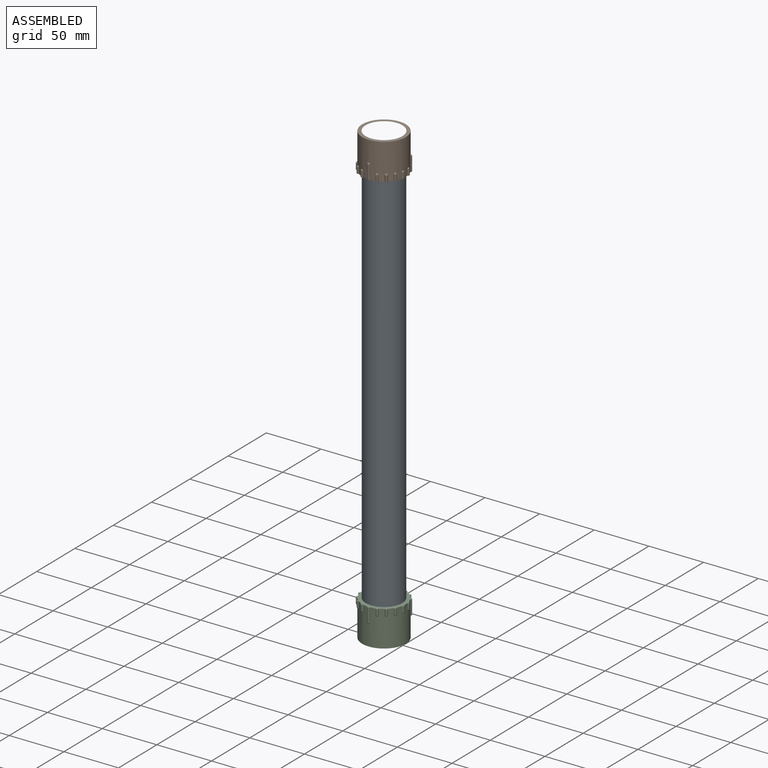
[diagram: assembled view]
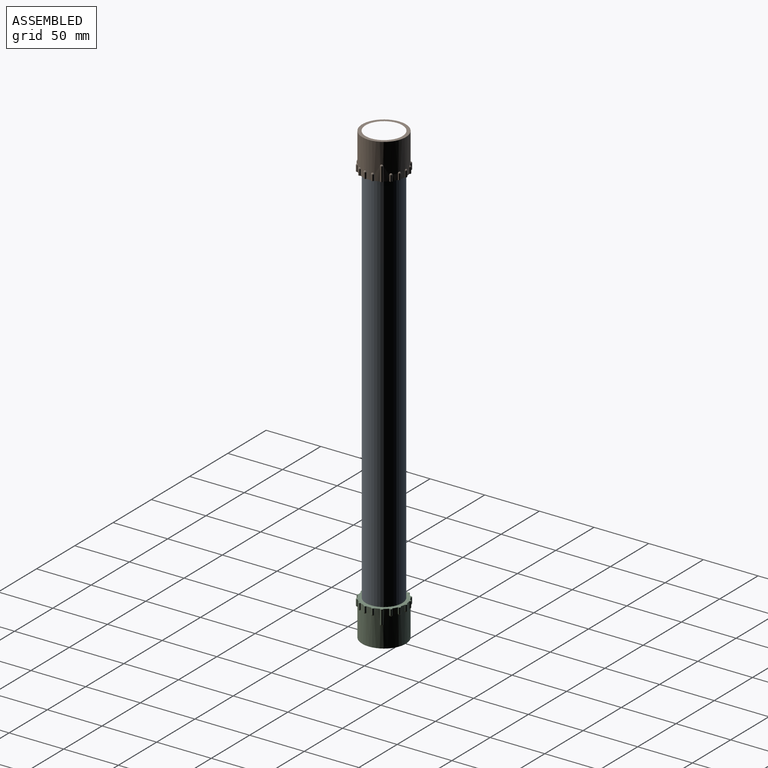
[diagram: assembled view, second angle]
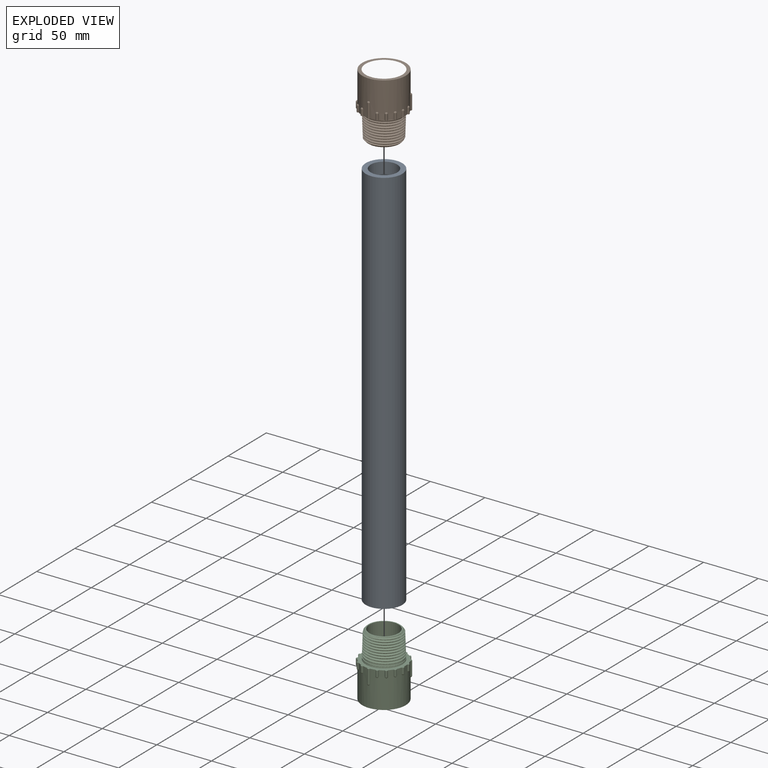
[diagram: exploded view]
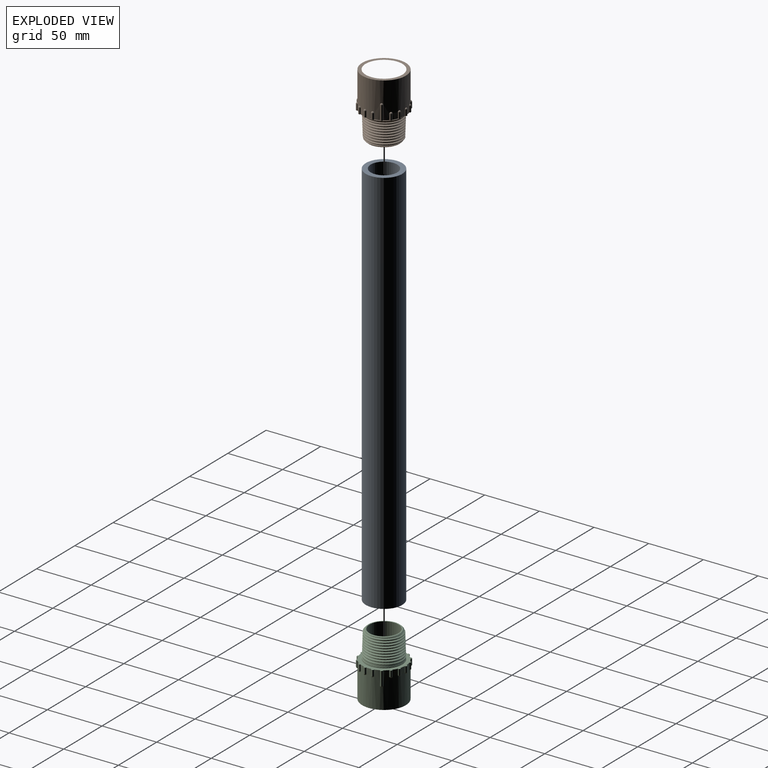
[diagram: exploded view, second angle]
ASSEMBLY  parts=3 mates=2
PART A: 4 faces, bbox 33.4x33.4x356.4 mm
  f0: cylinder r=12.15mm len=356.4mm, axis (0,0,-1), area 27216.6mm2, adj f2,f3
  f1: cylinder r=16.7mm len=356.4mm, axis (0,0,-1), area 37397.9mm2, adj f2,f3
  f2: plane 33.4x33.4mm, normal (0,0,1), area 412.1mm2, adj f0,f1
  f3: plane 33.4x33.4mm, normal (0,0,-1), area 412.1mm2, adj f0,f1
PART B: 49 faces, bbox 58.4x42.3x41.7 mm
  f0: torus R=0.04mm, axis (-1,0,0), area 4.5mm2, adj f16,f30
  f1: torus R=0.04mm, axis (-1,0,0), area 4.3mm2, adj f17,f30
  f2: torus R=0.04mm, axis (-1,0,0), area 4.1mm2, adj f18,f30
  f3: torus R=0.04mm, axis (-1,0,0), area 3mm2, adj f19,f30
  f4: torus R=0.04mm, axis (-1,0,0), area 3mm2, adj f20,f30
  f5: torus R=0.04mm, axis (-1,0,0), area 4.1mm2, adj f21,f30
  f6: torus R=0.04mm, axis (-1,0,0), area 4.3mm2, adj f22,f30
  f7: torus R=0.04mm, axis (-1,0,0), area 4.5mm2, adj f23,f30
  f8: torus R=0.04mm, axis (-1,0,0), area 4.5mm2, adj f30,f45
  f9: torus R=0.04mm, axis (-1,0,0), area 4.3mm2, adj f30,f44
  f10: torus R=0.04mm, axis (-1,0,0), area 4.1mm2, adj f30,f43
  f11: torus R=0.04mm, axis (-1,0,0), area 3mm2, adj f30,f42
  f12: torus R=0.04mm, axis (-1,0,0), area 3mm2, adj f30,f41
  f13: torus R=0.04mm, axis (-1,0,0), area 4.1mm2, adj f30,f40
  f14: torus R=0.04mm, axis (-1,0,0), area 4.3mm2, adj f30,f39
  f15: torus R=0.04mm, axis (-1,0,0), area 4.5mm2, adj f30,f38
  f16: cylinder r=1.23mm len=5.25mm, axis (-1,0,0), area 20.3mm2, adj f0,f30,f31
  f17: cylinder r=1.23mm len=5.25mm, axis (-1,0,0), area 20.3mm2, adj f1,f30,f31
  f18: cylinder r=1.23mm len=5.25mm, axis (-1,0,0), area 20.3mm2, adj f2,f30,f31
  f19: cylinder r=1.23mm len=5.25mm, axis (-1,0,0), area 20.3mm2, adj f3,f30,f31
  f20: cylinder r=1.23mm len=5.25mm, axis (-1,0,0), area 20.3mm2, adj f4,f30,f31
  f21: cylinder r=1.23mm len=12.77mm, axis (-1,0,0), area 49.4mm2, adj f5,f30,f31
  f22: cylinder r=1.23mm len=5.25mm, axis (-1,0,0), area 20.3mm2, adj f6,f30,f31
  f23: cylinder r=1.23mm len=5.25mm, axis (-1,0,0), area 20.3mm2, adj f7,f30,f31
  f24: cone r=16.64mm half-angle=0.4deg, axis (-1,0,0), area 3164.4mm2, adj f25,f32
  f25: cone r=13.32mm half-angle=55deg, axis (-1,0,0), area 380.9mm2, adj f24,f28
  f26: cone r=16.7mm half-angle=15deg, axis (-1,0,0), area 290.5mm2, adj f31,f34,f35,f36
  f27: cone r=14.29mm half-angle=45deg, axis (-1,0,0), area 134.2mm2, adj f29,f33,f34,f35,f36
  f28: cylinder r=13.32mm len=26.64mm, axis (1,0,0), area 2123.2mm2, adj f25,f33
  f29: cone r=16.7mm half-angle=1.8deg, axis (-1,0,0), area 381.8mm2, adj f27,f31,f34,f36
  f30: cylinder r=19.95mm len=39.9mm, axis (-1,0,0), area 3792.4mm2, adj f0,f1,f2,f3,f4,f5,f6,f7
  f31: plane 42.29x41.69mm, normal (1,0,0), area 416.1mm2, adj f16,f17,f18,f19,f20,f21,f22,f23
  f32: plane 39.9x39.9mm, normal (-1,0,0), area 361mm2, adj f24,f30
  f33: plane 28.57x28.57mm, normal (1,0,0), area 83.5mm2, adj f27,f28
  f34: bspline ~33.63x33.59mm, area 1419.7mm2, adj f26,f27,f29,f35
  f35: bspline ~30.36x30.33mm, area 257.6mm2, adj f26,f27,f34,f36
  f36: bspline ~33.65x33.62mm, area 1481.1mm2, adj f26,f27,f29,f35
  f37: cylinder r=1.23mm len=12.77mm, axis (-1,0,0), area 49.4mm2, adj f30,f31,f48
  f38: cylinder r=1.23mm len=5.25mm, axis (-1,0,0), area 20.3mm2, adj f15,f30,f31
  f39: cylinder r=1.23mm len=5.25mm, axis (-1,0,0), area 20.3mm2, adj f14,f30,f31
  f40: cylinder r=1.23mm len=5.25mm, axis (-1,0,0), area 20.3mm2, adj f13,f30,f31
  f41: cylinder r=1.23mm len=5.25mm, axis (-1,0,0), area 20.3mm2, adj f12,f30,f31
  f42: cylinder r=1.23mm len=5.25mm, axis (-1,0,0), area 20.3mm2, adj f11,f30,f31
  f43: cylinder r=1.23mm len=12.77mm, axis (-1,0,0), area 49.4mm2, adj f10,f30,f31
  f44: cylinder r=1.23mm len=5.25mm, axis (-1,0,0), area 20.3mm2, adj f9,f30,f31
  f45: cylinder r=1.23mm len=5.25mm, axis (-1,0,0), area 20.3mm2, adj f8,f30,f31
  f46: cylinder r=1.23mm len=5.25mm, axis (-1,0,0), area 20.3mm2, adj f30,f31,f47
  f47: torus R=0.04mm, axis (-1,0,0), area 4.6mm2, adj f30,f46
  f48: torus R=0.04mm, axis (-1,0,0), area 4.6mm2, adj f30,f37
PART C: same geometry as B
PLACE A t=(-499.53,203.3,-653.45)mm
PLACE B rot(axis=(0,1,0),90deg) t=(-499.53,203.3,914.23)mm
PLACE C rot(axis=(0,-1,0),90deg) t=(-499.53,203.3,560.87)mm
MATE fastened C.f24 <-> A.f0  axis (0,0,-1) through (-499.53,203.3,559.35)mm
MATE fastened B.f24 <-> A.f0  axis (0,0,1) through (-499.53,203.3,915.75)mm
